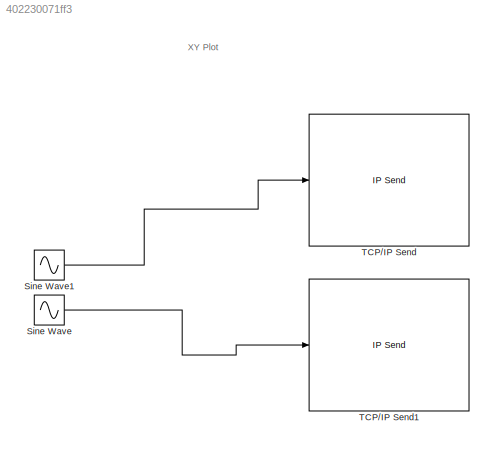
MODEL slx_402230071ff3
KIND model
CONFIG AbsTol = auto
CONFIG EnableMultiTasking = off
CONFIG FixedStep = 0.01
CONFIG MaxStep = auto
CONFIG MinStep = auto
CONFIG RelTol = 1e-3
CONFIG SampleTimeConstraint = Unconstrained
CONFIG Solver = FixedStepAuto
CONFIG SolverName = FixedStepAuto
CONFIG StartTime = 0.0
CONFIG StopTime = 10
BLOCK [Sin] Sine Wave
  Amplitude = 50
  Ports = [0, 1]
  SampleTime = 0.01
BLOCK [Sin] Sine Wave1
  Amplitude = 50
  Frequency = 5
  Ports = [0, 1]
  SampleTime = 0.01
BLOCK [Reference] TCP//IP Send  REF=instrumentlib/TCP//IP Send
  Ports = [1]
  SourceBlock = instrumentlib/TCP//IP Send
  SourceProductBaseCode = IC
  SourceProductName = Instrument Control Toolbox
  SourceType = TCP/IP Send
BLOCK [Reference] TCP//IP Send1  REF=instrumentlib/TCP//IP Send
  Commented = on
  Ports = [1]
  SourceBlock = instrumentlib/TCP//IP Send
  SourceProductBaseCode = IC
  SourceProductName = Instrument Control Toolbox
  SourceType = TCP/IP Send
ANNOTATION (root): XY Plot
LINE Sine Wave1:1 -> TCP//IP Send:1
LINE Sine Wave:1 -> TCP//IP Send1:1
